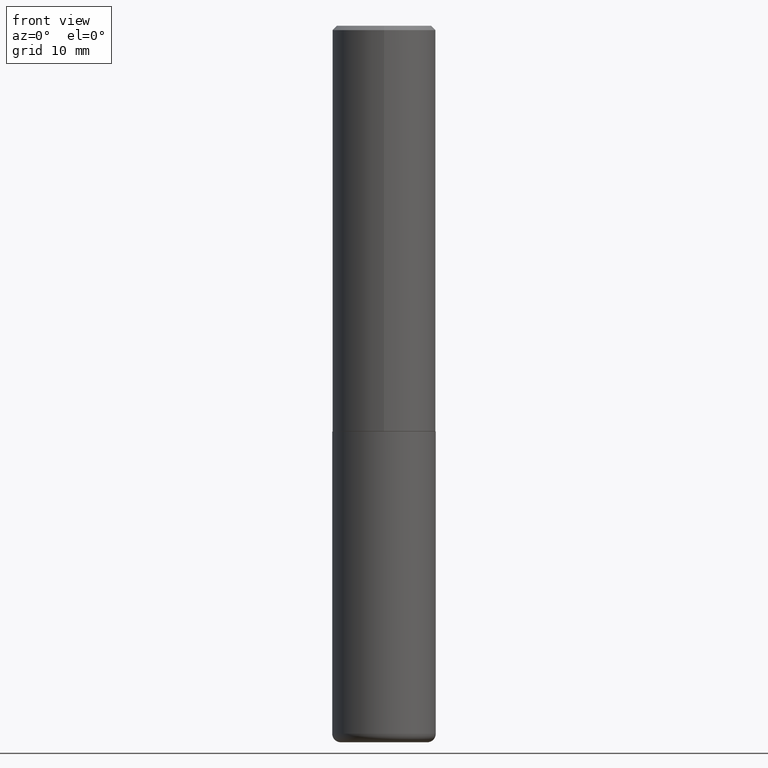
[diagram: clean part render]
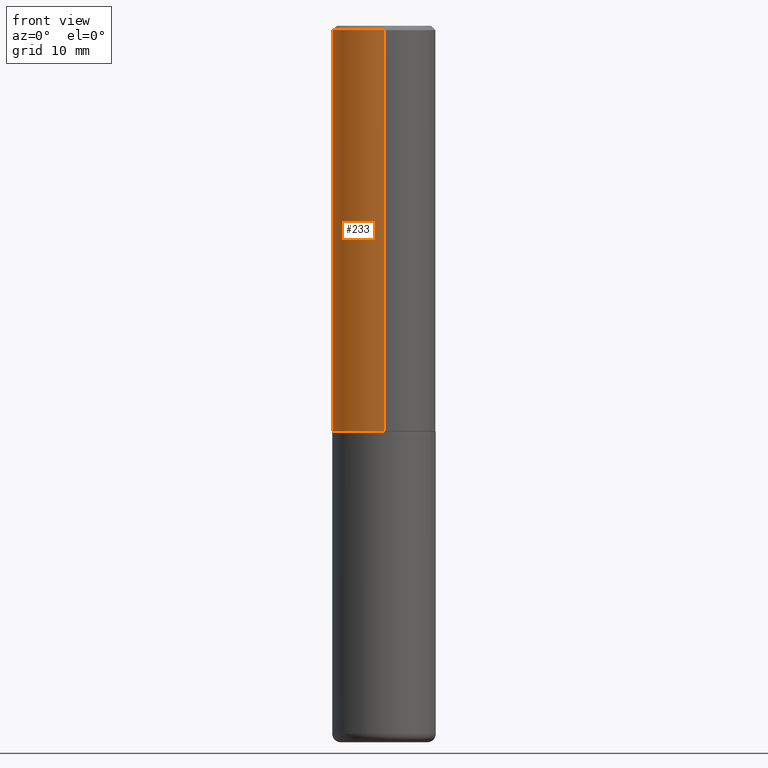
[diagram: same view with one face highlighted and labeled with its STEP entity id]
A machine part, front view. The second image highlights one B-rep face of the part: STEP entity #233.
In plain terms, the highlighted cylindrical surface (partial cylindrical patch) has radius 5.9995 mm, axis along (-0, 0, 1).
Its self-contained STEP definition (entity closure, byte-faithful):
#8 = AXIS2_PLACEMENT_3D ( 'NONE', #124, #70, #223 ) ;
#38 = CARTESIAN_POINT ( 'NONE',  ( 1.678301941865357183E-15, 0.2362000000000001043, -8.247206622664545710E-16 ) ) ;
#45 = EDGE_CURVE ( 'NONE', #93, #256, #385, .T. ) ;
#70 = DIRECTION ( 'NONE',  ( -2.445371925614294233E-29, 3.491620077334691546E-15, 1.000000000000000000 ) ) ;
#75 = ORIENTED_EDGE ( 'NONE', *, *, #269, .F. ) ;
#80 = CARTESIAN_POINT ( 'NONE',  ( -1.649375784469452349E-15, -0.2362000000000066546, -1.849399999999999489 ) ) ;
#93 = VERTEX_POINT ( 'NONE', #80 ) ;
#96 = VERTEX_POINT ( 'NONE', #208 ) ;
#99 = CARTESIAN_POINT ( 'NONE',  ( -1.649375784469496722E-15, -0.2362000000000001043, 8.247206622664545710E-16 ) ) ;
#111 = AXIS2_PLACEMENT_3D ( 'NONE', #182, #146, #375 ) ;
#124 = CARTESIAN_POINT ( 'NONE',  ( 4.890743851228601113E-31, -6.983240154669400497E-17, -0.02000000000000005246 ) ) ;
#146 = DIRECTION ( 'NONE',  ( -2.445371925614294233E-29, 3.491620077334691546E-15, 1.000000000000000000 ) ) ;
#154 = CYLINDRICAL_SURFACE ( 'NONE', #366, 0.2362000000000001043 ) ;
#176 = ORIENTED_EDGE ( 'NONE', *, *, #205, .F. ) ;
#182 = CARTESIAN_POINT ( 'NONE',  ( 4.522470839231075964E-29, -6.457402171022779437E-15, -1.849400000000000155 ) ) ;
#189 = DIRECTION ( 'NONE',  ( -2.445371925614294233E-29, 3.491620077334691546E-15, 1.000000000000000000 ) ) ;
#196 = DIRECTION ( 'NONE',  ( -2.445371925614294233E-29, 3.491620077334691546E-15, 1.000000000000000000 ) ) ;
#205 = EDGE_CURVE ( 'NONE', #96, #256, #391, .T. ) ;
#208 = CARTESIAN_POINT ( 'NONE',  ( 1.649375784469496525E-15, 0.2361999999999999378, -0.02000000000000087472 ) ) ;
#209 = CIRCLE ( 'NONE', #111, 0.2362000000000002153 ) ;
#210 = EDGE_CURVE ( 'NONE', #323, #93, #209, .T. ) ;
#211 = ORIENTED_EDGE ( 'NONE', *, *, #45, .T. ) ;
#212 = CARTESIAN_POINT ( 'NONE',  ( -1.620449627073635079E-15, -0.2362000000000000766, -0.01999999999999922673 ) ) ;
#223 = DIRECTION ( 'NONE',  ( -6.982962677686265922E-15, -1.000000000000000000, 3.487819265831411744E-15 ) ) ;
#225 = DIRECTION ( 'NONE',  ( -2.445371925614294233E-29, 3.491620077334691546E-15, 1.000000000000000000 ) ) ;
#233 = ADVANCED_FACE ( 'NONE', ( #310 ), #154, .T. ) ;
#244 = CARTESIAN_POINT ( 'NONE',  ( 0.000000000000000000, 0.000000000000000000, 0.000000000000000000 ) ) ;
#249 = ORIENTED_EDGE ( 'NONE', *, *, #210, .T. ) ;
#250 = CARTESIAN_POINT ( 'NONE',  ( 1.678301941865380454E-15, 0.2361999999999937760, -1.849400000000001043 ) ) ;
#256 = VERTEX_POINT ( 'NONE', #212 ) ;
#258 = VECTOR ( 'NONE', #196, 39.37007874015748143 ) ;
#269 = EDGE_CURVE ( 'NONE', #323, #96, #389, .T. ) ;
#284 = DIRECTION ( 'NONE',  ( -6.982962677686265922E-15, -1.000000000000000000, 3.491620077334691941E-15 ) ) ;
#310 = FACE_OUTER_BOUND ( 'NONE', #339, .T. ) ;
#316 = VECTOR ( 'NONE', #225, 39.37007874015748143 ) ;
#323 = VERTEX_POINT ( 'NONE', #250 ) ;
#339 = EDGE_LOOP ( 'NONE', ( #75, #249, #211, #176 ) ) ;
#366 = AXIS2_PLACEMENT_3D ( 'NONE', #244, #189, #284 ) ;
#375 = DIRECTION ( 'NONE',  ( -6.982962677686265133E-15, -1.000000000000000000, 3.469747663417773847E-15 ) ) ;
#385 = LINE ( 'NONE', #99, #316 ) ;
#389 = LINE ( 'NONE', #38, #258 ) ;
#391 = CIRCLE ( 'NONE', #8, 0.2361999999999999933 ) ;